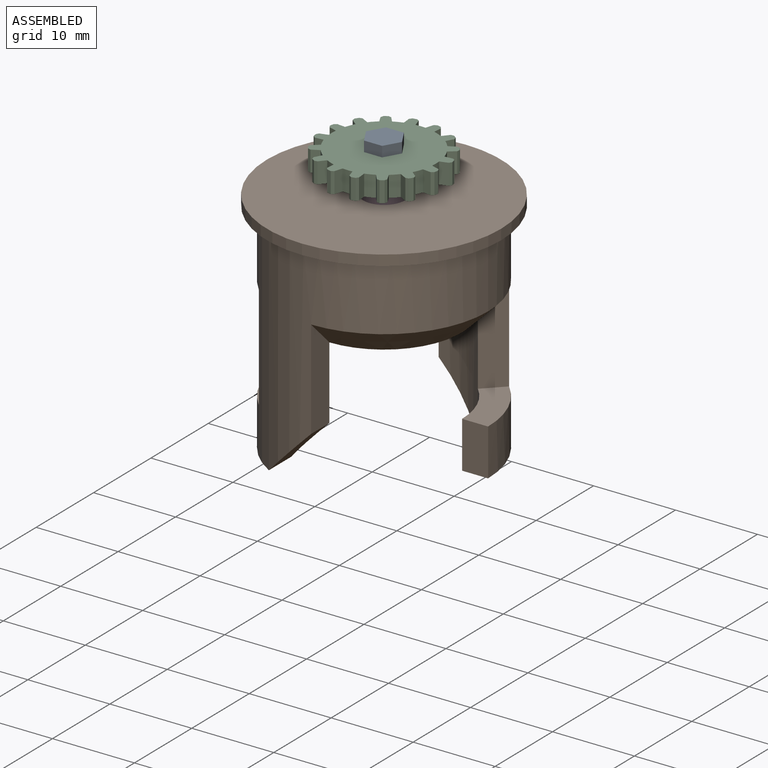
[diagram: assembled view]
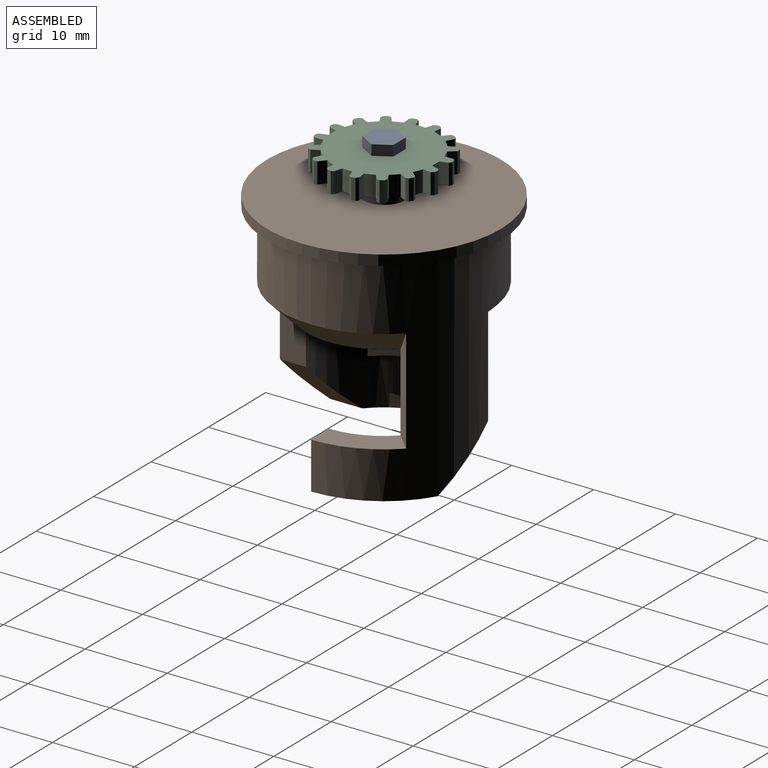
[diagram: assembled view, second angle]
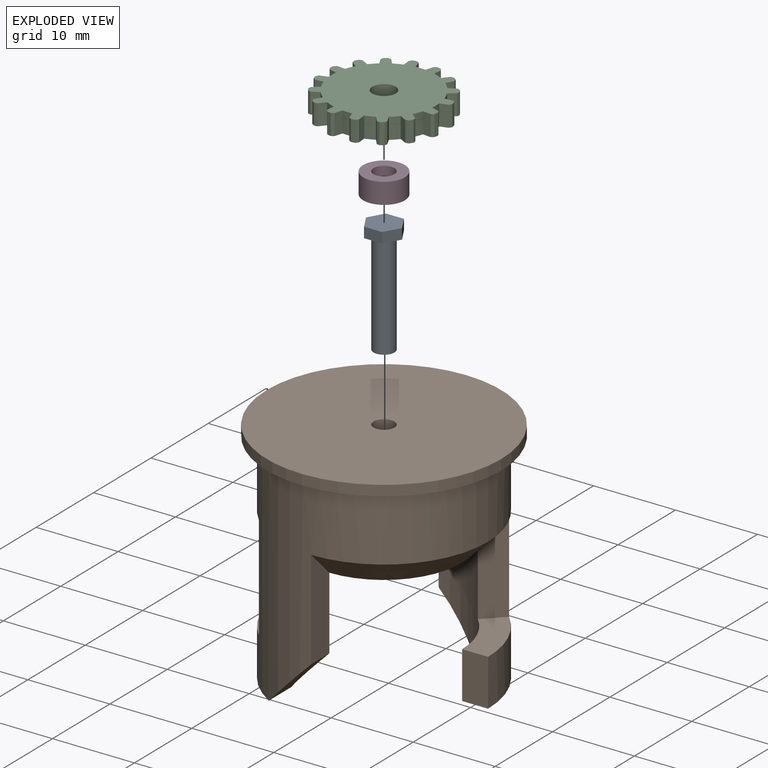
[diagram: exploded view]
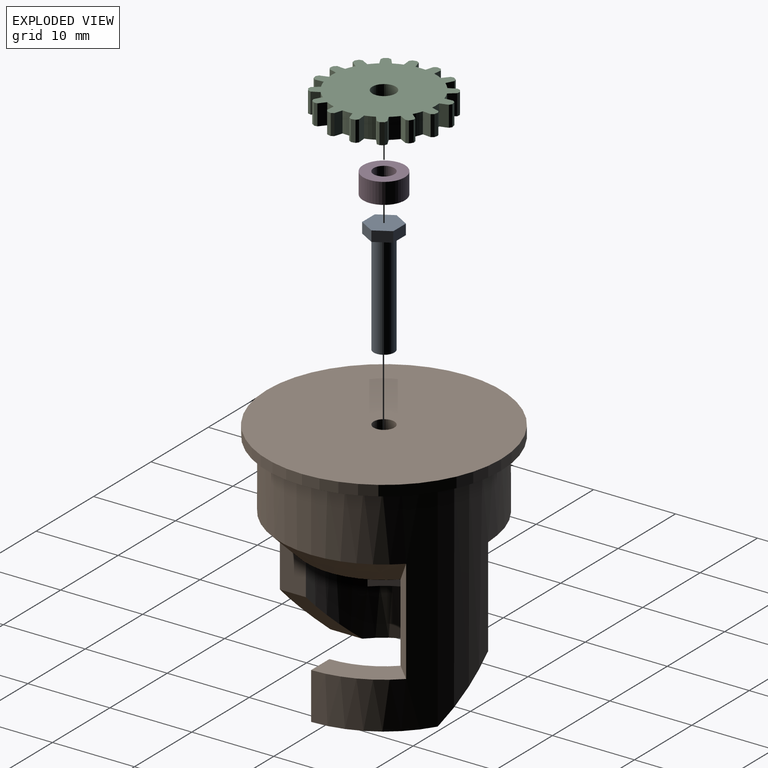
[diagram: exploded view, second angle]
ASSEMBLY  parts=4 mates=3
PART A: 10 faces, bbox 4.4x3.8x14 mm
  f0: cylinder r=1.27mm len=12.7mm, axis (0,0,-1), area 101.3mm2, adj f1,f9
  f1: plane 2.54x2.54mm, normal (0,0,1), area 5.1mm2, adj f0
  f2: plane 1.91x1.27mm, normal (0.87,0.5,0), area 2.8mm2, adj f3,f7,f8,f9
  f3: plane 2.2x1.27mm, normal (0,1,0), area 2.8mm2, adj f2,f4,f8,f9
  f4: plane 1.91x1.27mm, normal (-0.87,0.5,0), area 2.8mm2, adj f3,f5,f8,f9
  f5: plane 1.91x1.27mm, normal (-0.87,-0.5,0), area 2.8mm2, adj f4,f6,f8,f9
  f6: plane 2.2x1.27mm, normal (0,-1,0), area 2.8mm2, adj f5,f7,f8,f9
  f7: plane 1.91x1.27mm, normal (0.87,-0.5,0), area 2.8mm2, adj f2,f6,f8,f9
  f8: plane 4.4x3.81mm, normal (0,0,-1), area 12.6mm2, adj f2,f3,f4,f5,f6,f7
  f9: plane 4.4x3.81mm, normal (0,0,1), area 7.5mm2, adj f0,f2,f3,f4,f5,f6,f7
PART B: 23 faces, bbox 28.6x28.6x27.9 mm
  f0: cylinder r=12.7mm len=26.67mm, axis (0,0,-1), area 1098.9mm2, adj f4,f5,f6,f7,f8,f9,f10,f11
  f1: cylinder r=9.53mm len=15.24mm, axis (0,0,1), area 135.7mm2, adj f3,f4,f5,f6,f10,f11,f15
  f2: cylinder r=9.53mm len=15.24mm, axis (0,0,1), area 135.7mm2, adj f3,f7,f8,f9,f12,f13,f14
  f3: plane 19.05x19.05mm, normal (0,0,-1), area 285mm2, adj f1,f2,f21,f22
  f4: plane 5.72x3.18mm, normal (0,-1,0), area 18.1mm2, adj f0,f1,f6,f11
  f5: plane 12.07x3.18mm, normal (-1,0,0), area 33.3mm2, adj f0,f1,f15,f21
  f6: plane 11x6.35mm, normal (0,0,-1), area 33.9mm2, adj f0,f1,f4,f15
  f7: plane 5.72x3.18mm, normal (0,1,0), area 18.1mm2, adj f0,f2,f9,f13
  f8: plane 12.07x3.18mm, normal (1,0,0), area 33.3mm2, adj f0,f2,f14,f22
  f9: plane 11x6.35mm, normal (0,0,-1), area 33.9mm2, adj f0,f2,f7,f14
  f10: plane 12.7x2.25mm, normal (0.71,-0.71,0), area 35.3mm2, adj f0,f1,f11,f22
  f11: plane 8.98x5.97mm, normal (0,0,1), area 27.7mm2, adj f0,f1,f4,f10
  f12: plane 12.7x2.25mm, normal (-0.71,0.71,0), area 35.3mm2, adj f0,f2,f13,f21
  f13: plane 8.98x5.97mm, normal (0,0,1), area 27.7mm2, adj f0,f2,f7,f12
  f14: plane 6.35x6.35mm, normal (0.71,0,-0.71), area 30.4mm2, adj f0,f2,f8,f9
  f15: plane 6.35x6.35mm, normal (-0.71,0,-0.71), area 30.4mm2, adj f0,f1,f5,f6
  f16: cylinder r=14.29mm len=28.58mm, axis (0,0,1), area 114mm2, adj f17,f18
  f17: plane 28.58x28.58mm, normal (0,0,-1), area 134.6mm2, adj f0,f16
  f18: plane 28.58x28.58mm, normal (0,0,1), area 636.2mm2, adj f16,f20
  f19: cone r=0mm half-angle=59deg, axis (0,0,1), area 5.9mm2, adj f20
  f20: cylinder r=1.27mm len=10.16mm, axis (0,0,1), area 81.1mm2, adj f18,f19
  f21: cone r=12.7mm half-angle=45deg, axis (0,0,1), area 117.6mm2, adj f0,f3,f5,f12
  f22: cone r=12.7mm half-angle=45deg, axis (0,0,1), area 117.6mm2, adj f0,f3,f8,f10
PART C: 131 faces, bbox 15x15x2.5 mm
  f0: plane 2.54x0.03mm, normal (-0.19,0.98,0), area 0.1mm2, adj f1,f64,f65,f78
  f1: cylinder r=6.35mm len=2.54mm, axis (0,0,-1), area 3.1mm2, adj f0,f2,f64,f65
  f2: plane 2.54x0.02mm, normal (0.55,-0.83,0), area 0.1mm2, adj f1,f64,f65,f90
  f3: plane 2.54x0.42mm, normal (0.83,0.55,0), area 1.3mm2, adj f64,f65,f123,f124
  f4: plane 2.54x0.02mm, normal (-0.55,0.83,0), area 0.1mm2, adj f5,f64,f65,f79
  f5: cylinder r=6.35mm len=2.54mm, axis (0,0,-1), area 3.1mm2, adj f4,f6,f64,f65
  f6: plane 2.54x0.02mm, normal (0.83,-0.56,0), area 0.1mm2, adj f5,f64,f65,f91
  f7: plane 2.54x0.42mm, normal (0.56,0.83,0), area 1.3mm2, adj f64,f65,f125,f126
  f8: plane 2.54x0.02mm, normal (-0.83,0.56,0), area 0.1mm2, adj f9,f64,f65,f80
  f9: cylinder r=6.35mm len=2.54mm, axis (0,0,-1), area 3.1mm2, adj f8,f10,f64,f65
  f10: plane 2.54x0.03mm, normal (0.98,-0.2,0), area 0.1mm2, adj f9,f64,f65,f92
  f11: plane 2.54x0.5mm, normal (0.2,0.98,0), area 1.3mm2, adj f64,f65,f127,f128
  f12: plane 2.54x0.03mm, normal (-0.98,0.2,0), area 0.1mm2, adj f13,f64,f65,f81
  f13: cylinder r=6.35mm len=2.54mm, axis (0,0,-1), area 3.1mm2, adj f12,f14,f64,f65
  f14: plane 2.54x0.03mm, normal (0.98,0.19,0), area 0.1mm2, adj f13,f64,f65,f98
  f15: plane 2.54x0.5mm, normal (-0.19,0.98,0), area 1.3mm2, adj f64,f65,f129,f130
  f16: plane 2.54x0.03mm, normal (-0.98,-0.19,0), area 0.1mm2, adj f17,f64,f65,f82
  f17: cylinder r=6.35mm len=2.54mm, axis (0,0,-1), area 3.1mm2, adj f16,f18,f64,f65
  f18: plane 2.54x0.02mm, normal (0.83,0.55,0), area 0.1mm2, adj f17,f64,f65,f97
  f19: plane 2.54x0.42mm, normal (-0.55,0.83,0), area 1.3mm2, adj f64,f65,f99,f100
  f20: plane 2.54x0.02mm, normal (-0.83,-0.55,0), area 0.1mm2, adj f21,f64,f65,f67
  f21: cylinder r=6.35mm len=2.54mm, axis (0,0,-1), area 3.1mm2, adj f20,f22,f64,f65
  f22: plane 2.54x0.02mm, normal (0.56,0.83,0), area 0.1mm2, adj f21,f64,f65,f96
  f23: plane 2.54x0.42mm, normal (-0.83,0.56,0), area 1.3mm2, adj f64,f65,f101,f102
  f24: plane 2.54x0.02mm, normal (-0.56,-0.83,0), area 0.1mm2, adj f25,f64,f65,f68
  f25: cylinder r=6.35mm len=2.54mm, axis (0,0,-1), area 3.1mm2, adj f24,f26,f64,f65
  f26: plane 2.54x0.03mm, normal (0.2,0.98,0), area 0.1mm2, adj f25,f64,f65,f95
  f27: plane 2.54x0.5mm, normal (-0.98,0.2,0), area 1.3mm2, adj f64,f65,f103,f104
  f28: plane 2.54x0.03mm, normal (-0.2,-0.98,0), area 0.1mm2, adj f29,f64,f65,f69
  f29: cylinder r=6.35mm len=2.54mm, axis (0,0,-1), area 3.1mm2, adj f28,f30,f64,f65
  f30: plane 2.54x0.03mm, normal (-0.19,0.98,0), area 0.1mm2, adj f29,f64,f65,f94
  f31: plane 2.54x0.5mm, normal (-0.98,-0.19,0), area 1.3mm2, adj f64,f65,f105,f106
  f32: plane 2.54x0.03mm, normal (0.19,-0.98,0), area 0.1mm2, adj f33,f64,f65,f70
  f33: cylinder r=6.35mm len=2.54mm, axis (0,0,-1), area 3.1mm2, adj f32,f34,f64,f65
  f34: plane 2.54x0.02mm, normal (-0.55,0.83,0), area 0.1mm2, adj f33,f64,f65,f93
  f35: plane 2.54x0.42mm, normal (-0.83,-0.55,0), area 1.3mm2, adj f64,f65,f107,f108
  f36: plane 2.54x0.02mm, normal (0.55,-0.83,0), area 0.1mm2, adj f37,f64,f65,f71
  f37: cylinder r=6.35mm len=2.54mm, axis (0,0,-1), area 3.1mm2, adj f36,f38,f64,f65
  f38: plane 2.54x0.02mm, normal (-0.83,0.56,0), area 0.1mm2, adj f37,f64,f65,f83
  f39: plane 2.54x0.42mm, normal (-0.56,-0.83,0), area 1.3mm2, adj f64,f65,f109,f110
  f40: plane 2.54x0.02mm, normal (0.83,-0.56,0), area 0.1mm2, adj f41,f64,f65,f72
  f41: cylinder r=6.35mm len=2.54mm, axis (0,0,-1), area 3.1mm2, adj f40,f42,f64,f65
  f42: plane 2.54x0.03mm, normal (-0.98,0.2,0), area 0.1mm2, adj f41,f64,f65,f84
  f43: plane 2.54x0.5mm, normal (-0.2,-0.98,0), area 1.3mm2, adj f64,f65,f111,f112
  f44: plane 2.54x0.03mm, normal (0.98,-0.2,0), area 0.1mm2, adj f45,f64,f65,f73
  f45: cylinder r=6.35mm len=2.54mm, axis (0,0,-1), area 3.1mm2, adj f44,f46,f64,f65
  f46: plane 2.54x0.03mm, normal (-0.98,-0.19,0), area 0.1mm2, adj f45,f64,f65,f85
  f47: plane 2.54x0.5mm, normal (0.19,-0.98,0), area 1.3mm2, adj f64,f65,f113,f114
  f48: plane 2.54x0.03mm, normal (0.98,0.19,0), area 0.1mm2, adj f49,f64,f65,f74
  f49: cylinder r=6.35mm len=2.54mm, axis (0,0,-1), area 3.1mm2, adj f48,f50,f64,f65
  f50: plane 2.54x0.02mm, normal (-0.83,-0.55,0), area 0.1mm2, adj f49,f64,f65,f86
  f51: plane 2.54x0.42mm, normal (0.55,-0.83,0), area 1.3mm2, adj f64,f65,f115,f116
  f52: plane 2.54x0.02mm, normal (0.83,0.55,0), area 0.1mm2, adj f53,f64,f65,f75
  f53: cylinder r=6.35mm len=2.54mm, axis (0,0,-1), area 3.1mm2, adj f52,f54,f64,f65
  f54: plane 2.54x0.02mm, normal (-0.56,-0.83,0), area 0.1mm2, adj f53,f64,f65,f87
  f55: plane 2.54x0.42mm, normal (0.83,-0.56,0), area 1.3mm2, adj f64,f65,f117,f118
  f56: plane 2.54x0.02mm, normal (0.56,0.83,0), area 0.1mm2, adj f57,f64,f65,f76
  f57: cylinder r=6.35mm len=2.54mm, axis (0,0,-1), area 3.1mm2, adj f56,f58,f64,f65
  f58: plane 2.54x0.03mm, normal (-0.2,-0.98,0), area 0.1mm2, adj f57,f64,f65,f88
  f59: plane 2.54x0.5mm, normal (0.98,-0.2,0), area 1.3mm2, adj f64,f65,f119,f120
  f60: plane 2.54x0.03mm, normal (0.2,0.98,0), area 0.1mm2, adj f61,f64,f65,f77
  f61: cylinder r=6.35mm len=2.54mm, axis (0,0,-1), area 3.1mm2, adj f60,f62,f64,f65
  f62: plane 2.54x0.03mm, normal (0.19,-0.98,0), area 0.1mm2, adj f61,f64,f65,f89
  f63: plane 2.54x0.5mm, normal (0.98,0.19,0), area 1.3mm2, adj f64,f65,f121,f122
  f64: plane 14.99x14.99mm, normal (0,0,1), area 142.1mm2, adj f0,f1,f2,f3,f4,f5,f6,f7
  f65: plane 14.99x14.99mm, normal (0,0,-1), area 142.1mm2, adj f0,f1,f2,f3,f4,f5,f6,f7
  f66: cylinder r=1.43mm len=2.86mm, axis (0,0,-1), area 22.8mm2, adj f64,f65
  f67: plane 2.54x0.88mm, normal (-0.89,-0.46,0), area 2.5mm2, adj f20,f64,f65,f100
  f68: plane 2.54x0.77mm, normal (-0.64,-0.77,0), area 2.5mm2, adj f24,f64,f65,f102
  f69: plane 2.54x0.95mm, normal (-0.3,-0.95,0), area 2.5mm2, adj f28,f64,f65,f104
  f70: plane 2.54x0.99mm, normal (0.09,-1,0), area 2.5mm2, adj f32,f64,f65,f106
  f71: plane 2.54x0.88mm, normal (0.46,-0.89,0), area 2.5mm2, adj f36,f64,f65,f108
  f72: plane 2.54x0.77mm, normal (0.77,-0.64,0), area 2.5mm2, adj f40,f64,f65,f110
  f73: plane 2.54x0.95mm, normal (0.95,-0.3,0), area 2.5mm2, adj f44,f64,f65,f112
  f74: plane 2.54x0.99mm, normal (1,0.09,0), area 2.5mm2, adj f48,f64,f65,f114
  f75: plane 2.54x0.88mm, normal (0.89,0.46,0), area 2.5mm2, adj f52,f64,f65,f116
  f76: plane 2.54x0.77mm, normal (0.64,0.77,0), area 2.5mm2, adj f56,f64,f65,f118
  f77: plane 2.54x0.95mm, normal (0.3,0.95,0), area 2.5mm2, adj f60,f64,f65,f120
  f78: plane 2.54x0.99mm, normal (-0.09,1,0), area 2.5mm2, adj f0,f64,f65,f122
  f79: plane 2.54x0.88mm, normal (-0.46,0.89,0), area 2.5mm2, adj f4,f64,f65,f124
  f80: plane 2.54x0.77mm, normal (-0.77,0.64,0), area 2.5mm2, adj f8,f64,f65,f125
  f81: plane 2.54x0.95mm, normal (-0.95,0.3,0), area 2.5mm2, adj f12,f64,f65,f128
  f82: plane 2.54x0.99mm, normal (-1,-0.09,0), area 2.5mm2, adj f16,f64,f65,f129
  f83: plane 2.54x0.88mm, normal (-0.88,0.47,0), area 2.5mm2, adj f38,f64,f65,f109
  f84: plane 2.54x0.99mm, normal (-1,0.1,0), area 2.5mm2, adj f42,f64,f65,f111
  f85: plane 2.54x0.95mm, normal (-0.96,-0.29,0), area 2.5mm2, adj f46,f64,f65,f113
  f86: plane 2.54x0.77mm, normal (-0.77,-0.63,0), area 2.5mm2, adj f50,f64,f65,f115
  f87: plane 2.54x0.88mm, normal (-0.47,-0.88,0), area 2.5mm2, adj f54,f64,f65,f117
  f88: plane 2.54x0.99mm, normal (-0.1,-1,0), area 2.5mm2, adj f58,f64,f65,f119
  f89: plane 2.54x0.95mm, normal (0.29,-0.96,0), area 2.5mm2, adj f62,f64,f65,f121
  f90: plane 2.54x0.77mm, normal (0.63,-0.77,0), area 2.5mm2, adj f2,f64,f65,f123
  f91: plane 2.54x0.88mm, normal (0.88,-0.47,0), area 2.5mm2, adj f6,f64,f65,f126
  f92: plane 2.54x0.99mm, normal (1,-0.1,0), area 2.5mm2, adj f10,f64,f65,f127
  f93: plane 2.54x0.77mm, normal (-0.63,0.77,0), area 2.5mm2, adj f34,f64,f65,f107
  f94: plane 2.54x0.95mm, normal (-0.29,0.96,0), area 2.5mm2, adj f30,f64,f65,f105
  f95: plane 2.54x0.99mm, normal (0.1,1,0), area 2.5mm2, adj f26,f64,f65,f103
  f96: plane 2.54x0.88mm, normal (0.47,0.88,0), area 2.5mm2, adj f22,f64,f65,f101
  f97: plane 2.54x0.77mm, normal (0.77,0.63,0), area 2.5mm2, adj f18,f64,f65,f99
  f98: plane 2.54x0.95mm, normal (0.96,0.29,0), area 2.5mm2, adj f14,f64,f65,f130
  f99: plane 2.54x0.37mm, normal (0.15,0.99,0), area 1mm2, adj f19,f64,f65,f97
  f100: plane 2.54x0.37mm, normal (-0.97,0.25,0), area 1mm2, adj f19,f64,f65,f67
  f101: plane 2.54x0.37mm, normal (-0.24,0.97,0), area 1mm2, adj f23,f64,f65,f96
  f102: plane 2.54x0.37mm, normal (-0.99,-0.14,0), area 1mm2, adj f23,f64,f65,f68
  f103: plane 2.54x0.3mm, normal (-0.59,0.8,0), area 1mm2, adj f27,f64,f65,f95
  f104: plane 2.54x0.32mm, normal (-0.86,-0.51,0), area 1mm2, adj f27,f64,f65,f69
  f105: plane 2.54x0.32mm, normal (-0.86,0.52,0), area 1mm2, adj f31,f64,f65,f94
  f106: plane 2.54x0.3mm, normal (-0.6,-0.8,0), area 1mm2, adj f31,f64,f65,f70
  f107: plane 2.54x0.37mm, normal (-0.99,0.15,0), area 1mm2, adj f35,f64,f65,f93
  f108: plane 2.54x0.37mm, normal (-0.25,-0.97,0), area 1mm2, adj f35,f64,f65,f71
  f109: plane 2.54x0.37mm, normal (-0.97,-0.24,0), area 1mm2, adj f39,f64,f65,f83
  f110: plane 2.54x0.37mm, normal (0.14,-0.99,0), area 1mm2, adj f39,f64,f65,f72
  f111: plane 2.54x0.3mm, normal (-0.8,-0.59,0), area 1mm2, adj f43,f64,f65,f84
  f112: plane 2.54x0.32mm, normal (0.51,-0.86,0), area 1mm2, adj f43,f64,f65,f73
  f113: plane 2.54x0.32mm, normal (-0.52,-0.86,0), area 1mm2, adj f47,f64,f65,f85
  f114: plane 2.54x0.3mm, normal (0.8,-0.6,0), area 1mm2, adj f47,f64,f65,f74
  f115: plane 2.54x0.37mm, normal (-0.15,-0.99,0), area 1mm2, adj f51,f64,f65,f86
  f116: plane 2.54x0.37mm, normal (0.97,-0.25,0), area 1mm2, adj f51,f64,f65,f75
  f117: plane 2.54x0.37mm, normal (0.24,-0.97,0), area 1mm2, adj f55,f64,f65,f87
  f118: plane 2.54x0.37mm, normal (0.99,0.14,0), area 1mm2, adj f55,f64,f65,f76
  f119: plane 2.54x0.3mm, normal (0.59,-0.8,0), area 1mm2, adj f59,f64,f65,f88
  f120: plane 2.54x0.32mm, normal (0.86,0.51,0), area 1mm2, adj f59,f64,f65,f77
  f121: plane 2.54x0.32mm, normal (0.86,-0.52,0), area 1mm2, adj f63,f64,f65,f89
  f122: plane 2.54x0.3mm, normal (0.6,0.8,0), area 1mm2, adj f63,f64,f65,f78
  f123: plane 2.54x0.37mm, normal (0.99,-0.15,0), area 1mm2, adj f3,f64,f65,f90
  f124: plane 2.54x0.37mm, normal (0.25,0.97,0), area 1mm2, adj f3,f64,f65,f79
  f125: plane 2.54x0.37mm, normal (-0.14,0.99,0), area 1mm2, adj f7,f64,f65,f80
  f126: plane 2.54x0.37mm, normal (0.97,0.24,0), area 1mm2, adj f7,f64,f65,f91
  f127: plane 2.54x0.3mm, normal (0.8,0.59,0), area 1mm2, adj f11,f64,f65,f92
  f128: plane 2.54x0.32mm, normal (-0.51,0.86,0), area 1mm2, adj f11,f64,f65,f81
  f129: plane 2.54x0.3mm, normal (-0.8,0.6,0), area 1mm2, adj f15,f64,f65,f82
  f130: plane 2.54x0.32mm, normal (0.52,0.86,0), area 1mm2, adj f15,f64,f65,f98
PART D: 4 faces, bbox 5.1x5.1x2.5 mm
  f0: cylinder r=1.27mm len=2.54mm, axis (0,0,-1), area 20.3mm2, adj f2,f3
  f1: cylinder r=2.54mm len=5.08mm, axis (0,0,-1), area 40.5mm2, adj f2,f3
  f2: plane 5.08x5.08mm, normal (0,0,1), area 15.2mm2, adj f0,f1
  f3: plane 5.08x5.08mm, normal (0,0,-1), area 15.2mm2, adj f0,f1
PLACE A rot(axis=(1,0,0),180deg) t=(-0.11,-20.63,23.43)mm
PLACE B t=(-0.11,-20.63,5.65)mm fixed
PLACE C t=(-0.11,-20.63,20.89)mm
PLACE D t=(-0.11,-20.63,15.81)mm
MATE fastened C.f45 <-> D.f1  axis (0,0,-1) through (-0.11,-20.63,20.89)mm
MATE fastened B.f16 <-> D.f0  axis (0,0,1) through (-0.11,-20.63,18.35)mm
MATE fastened A.f0 <-> C.f41  axis (0,0,-1) through (-0.11,-20.63,23.43)mm
